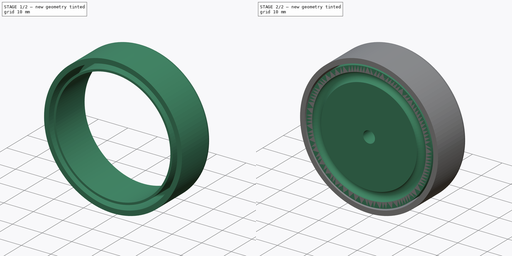
[diagram: build sequence overview — one tinted view per stage of 2, left to right]
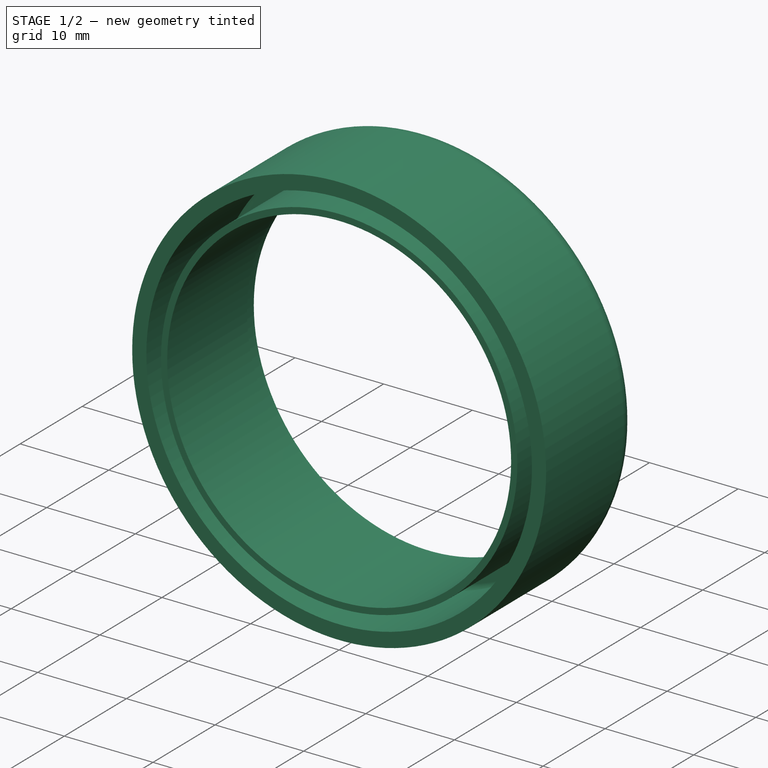
[diagram: stage 1 of 2 — iso view after this stage's code; geometry added in this stage tinted green]
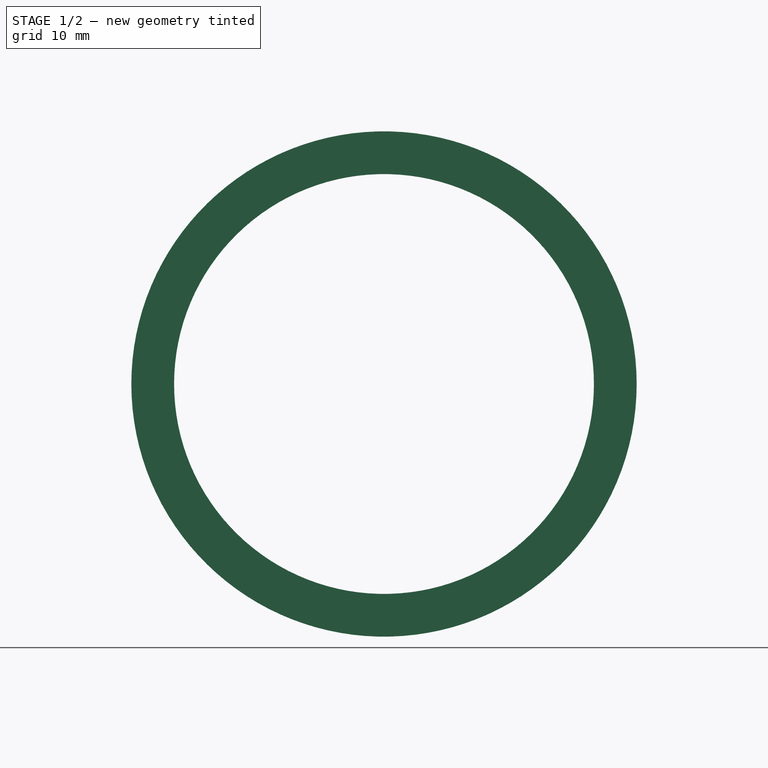
[diagram: stage 1 of 2 — front view after this stage's code; geometry added in this stage tinted green]
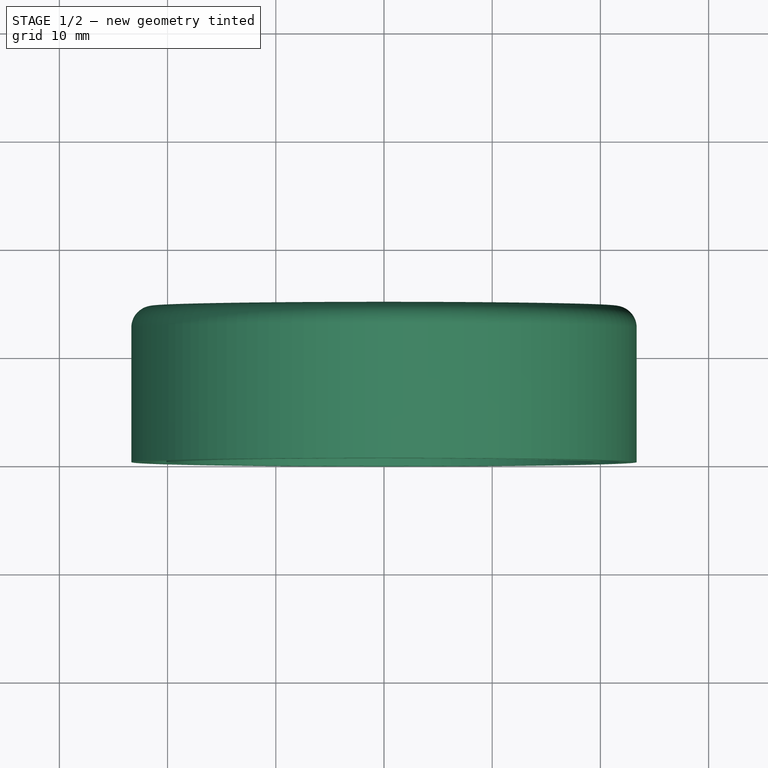
[diagram: stage 1 of 2 — top view after this stage's code; geometry added in this stage tinted green]
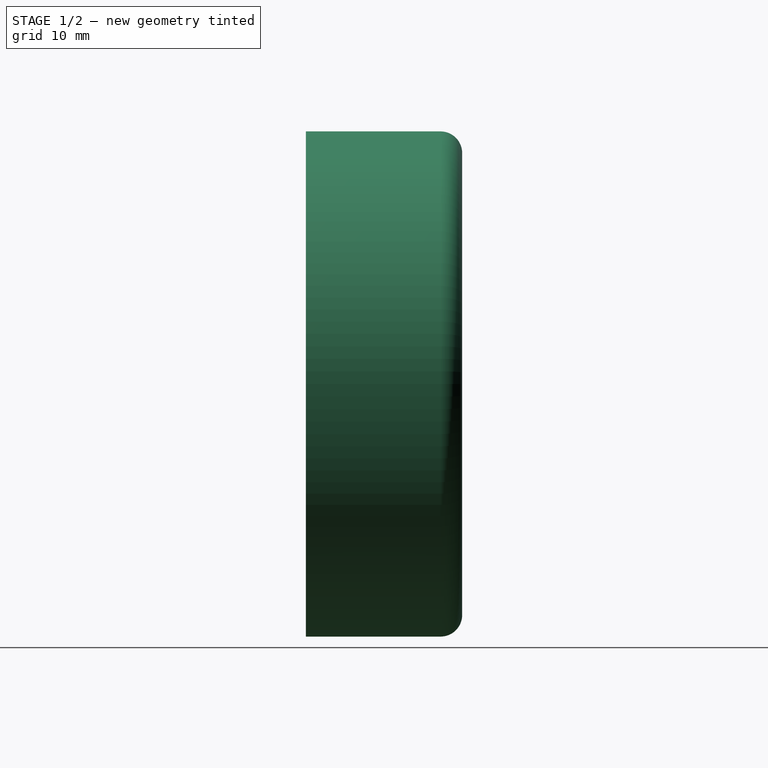
[diagram: stage 1 of 2 — right view after this stage's code; geometry added in this stage tinted green]
FCSTD DOCUMENT  (FreeCAD 0.16R6348 (Git))
Label: Stethoscoop
License: All rights reserved
LicenseURL: http://en.wikipedia.org/wiki/All_rights_reserved
objects: Sketcher::SketchObject×3, PartDesign::Revolution×2, PartDesign::Pad×1
note: 9 computed .brp shape members not serialized (recipe doc carries the construction recipe); baked Part::Feature solids carry a one-line shape summary decoded from their .brp

FEATURE [Sketcher::SketchObject] Sketch001
  sketch-geometry (8):
    g0: LineSegment StartX=21.75 StartY=0 StartZ=0 EndX=21.75 EndY=10.85 EndZ=0
    g1: LineSegment StartX=21.75 StartY=12.85 StartZ=0 EndX=19.75 EndY=12.85 EndZ=0
    g2: LineSegment StartX=19.75 StartY=12.85 StartZ=0 EndX=19.75 EndY=14.45 EndZ=0
    g3: LineSegment StartX=19.75 StartY=14.45 StartZ=0 EndX=21.35 EndY=14.45 EndZ=0
    g4: LineSegment StartX=23.35 StartY=12.45 StartZ=0 EndX=23.35 EndY=0 EndZ=0
    g5: LineSegment StartX=23.35 StartY=0 StartZ=0 EndX=21.75 EndY=0 EndZ=0
    g6: ArcOfCircle CenterX=21.35 CenterY=12.45 CenterZ=0 NormalX=0 NormalY=0 NormalZ=1 Radius=2 StartAngle=0 EndAngle=1.5708
    g7: ArcOfCircle CenterX=21.75 CenterY=11.85 CenterZ=0 NormalX=0 NormalY=0 NormalZ=1 Radius=1 StartAngle=4.71239 EndAngle=7.85398
  constraints (23):
    c: PointOnObject(g0,g-1)
    c: Vertical(g0)
    c: Horizontal(g1)
    c: Vertical(g2)
    c: Coincident(g2,g3)
    c: Horizontal(g3)
    c: PointOnObject(g4,g-1)
    c: Vertical(g4)
    c: Coincident(g4,g5)
    c: Coincident(g5,g0)
    c: DistanceX(g5) = -1.6
    c: DistanceX(g-1,g0) = 21.75
    c: Tangent(g3,g6) = 1.5708
    c: Tangent(g4,g6) = 1.5708
    c: Radius(g6) = 2
    c: Tangent(g1,g7) = -1.5708
    c: Radius(g7) = 1
    c: DistanceX(g0,g2) = -2
    c: DistanceY(g2,g1) = -1.6
    c: DistanceY(g1,g0) = -12.85
    c: Coincident(g2,g1)
    c: Angle(g7) = 3.14159
    c: Coincident(g0,g7)
FEATURE [PartDesign::Revolution] Revolution001  label="Outer"
  Angle = 360
  Axis = (0,1,0)
  Base = (0,0,0)
  ReferenceAxis = -> Sketch001 [V_Axis]
  Reversed = true
  Sketch = -> Sketch001
FEATURE [Sketcher::SketchObject] Sketch002
  ExternalGeometry = -> [Revolution001]
  Placement = pos=(0,12.85,0) rot=(1,0,0;1.5708rad)
  Support = -> Revolution001 [Face5]
  sketch-geometry (5):
    g0: Circle CenterX=0 CenterY=0 CenterZ=0 NormalX=0 NormalY=0 NormalZ=1 Radius=19.4
    g1: Circle CenterX=0 CenterY=0 CenterZ=0 NormalX=0 NormalY=0 NormalZ=1 Radius=20.1
    g2: LineSegment [constr] StartX=0 StartY=20.1 StartZ=0 EndX=0 EndY=19.75 EndZ=0
    g3: LineSegment [constr] StartX=0 StartY=19.75 StartZ=0 EndX=0 EndY=19.4 EndZ=0
    g4: LineSegment [constr] StartX=0 StartY=19.4 StartZ=0 EndX=0 EndY=0 EndZ=0
  constraints (13):
    c: Coincident(g-1,g0)
    c: Coincident(g1,g-1)
    c: Vertical(g2)
    c: Coincident(g2,g3)
    c: PointOnObject(g3,g0)
    c: Vertical(g3)
    c: Coincident(g3,g4)
    c: Coincident(g4,g-1)
    c: Vertical(g4)
    c: PointOnObject(g2,g1)
    c: Equal(g2,g3)
    c: PointOnObject(g2,g-3)
    c: DistanceY(g2,g3) = -0.7
FEATURE [PartDesign::Pad] Pad
  Length = 10
  Length2 = 100
  Sketch = -> Sketch002
  Type = 3
  UpToFace = -> Revolution001 [Face2]
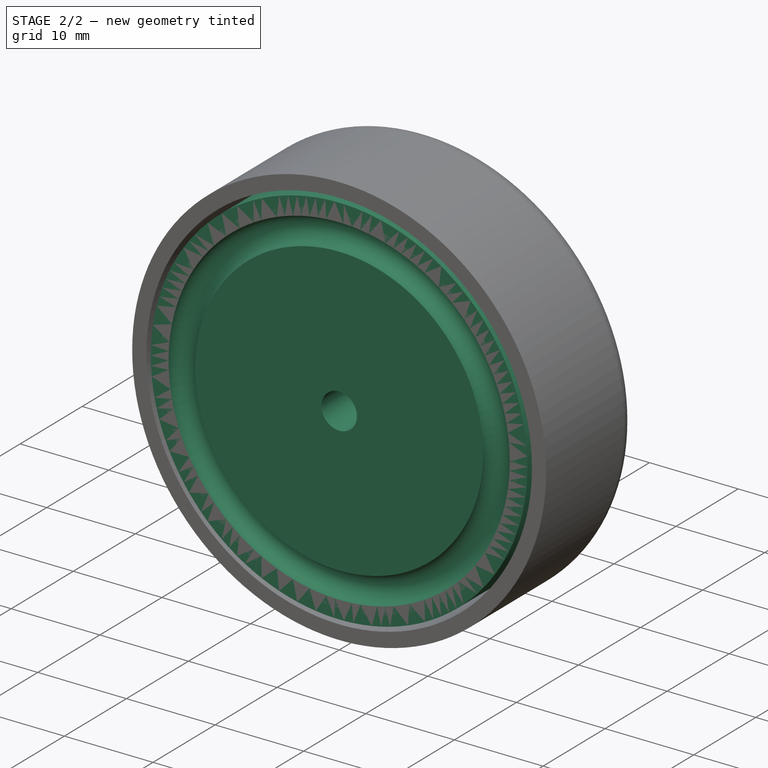
[diagram: stage 2 of 2 — iso view after this stage's code; geometry added in this stage tinted green]
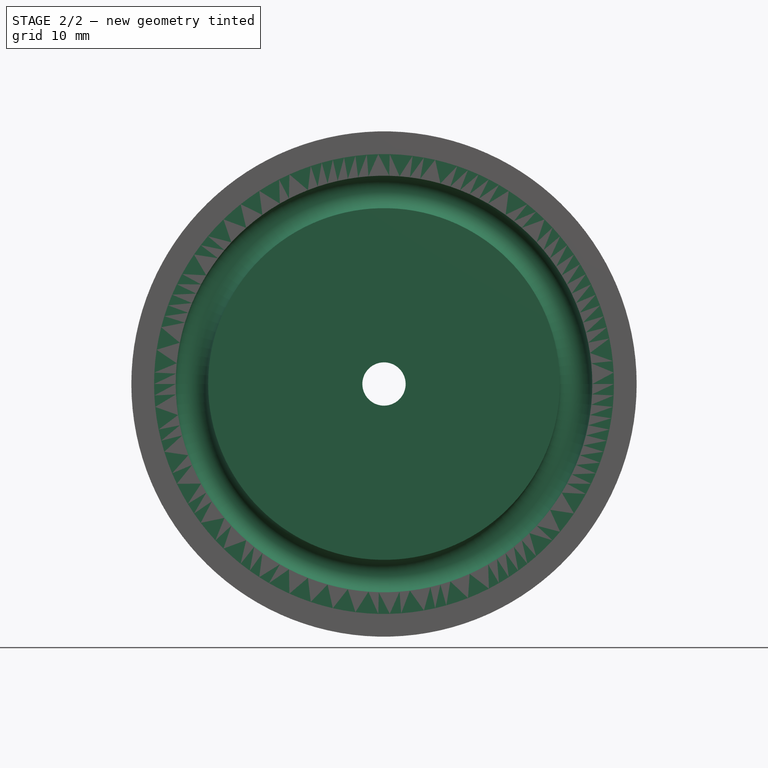
[diagram: stage 2 of 2 — front view after this stage's code; geometry added in this stage tinted green]
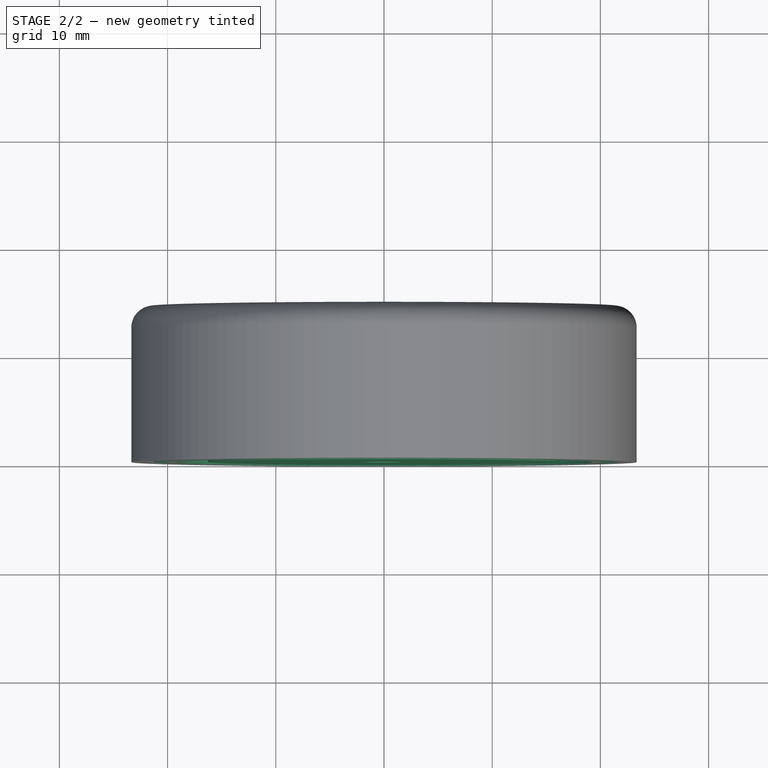
[diagram: stage 2 of 2 — top view after this stage's code; geometry added in this stage tinted green]
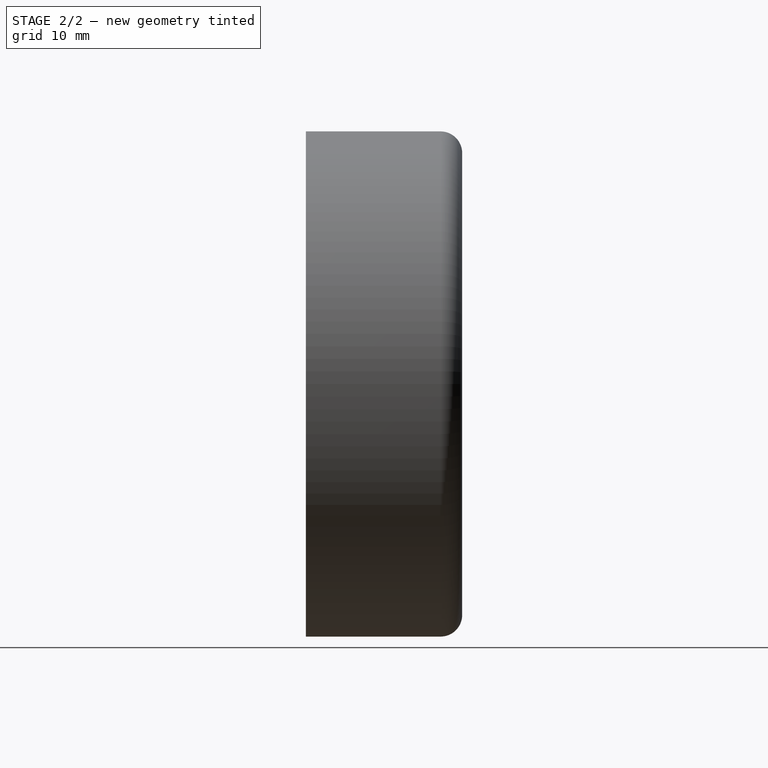
[diagram: stage 2 of 2 — right view after this stage's code; geometry added in this stage tinted green]
FEATURE [Sketcher::SketchObject] Sketch
  sketch-geometry (10):
    g0: LineSegment StartX=21.25 StartY=0 StartZ=0 EndX=19.25 EndY=0 EndZ=0
    g1: ArcOfCircle CenterX=17.9 CenterY=10 CenterZ=0 NormalX=0 NormalY=0 NormalZ=1 Radius=0.85 StartAngle=0 EndAngle=3.14159
    g2: LineSegment StartX=18.75 StartY=10 StartZ=0 EndX=20.25 EndY=10 EndZ=0
    g3: LineSegment StartX=21.25 StartY=9 StartZ=0 EndX=21.25 EndY=0 EndZ=0
    g4: ArcOfCircle CenterX=20.25 CenterY=9 CenterZ=0 NormalX=0 NormalY=0 NormalZ=1 Radius=1 StartAngle=0 EndAngle=1.5708
    g5: LineSegment StartX=17.05 StartY=10 StartZ=0 EndX=3.7968 EndY=7.926 EndZ=0
    g6: LineSegment StartX=2 StartY=0 StartZ=0 EndX=16.25 EndY=0 EndZ=0
    g7: ArcOfCircle CenterX=17.75 CenterY=0 CenterZ=0 NormalX=0 NormalY=0 NormalZ=1 Radius=1.5 StartAngle=0 EndAngle=3.14159
    g8: LineSegment StartX=2 StartY=0 StartZ=0 EndX=2 EndY=5.82615 EndZ=0
    g9: ArcOfCircle CenterX=4.12541 CenterY=5.82615 CenterZ=0 NormalX=0 NormalY=0 NormalZ=1 Radius=2.12541 StartAngle=1.72603 EndAngle=3.14159
  constraints (29):
    c: Horizontal(g0)
    c: Perpendicular(g1,g2) = 4.71239
    c: Coincident(g3,g0)
    c: Vertical(g3)
    c: Radius(g1) = 0.85
    c: DistanceX(g0) = -2
    c: PointOnObject(g0,g-1)
    c: DistanceX(g-1,g0) = 21.25
    c: Horizontal(g2)
    c: Tangent(g2,g4) = 1.5708
    c: Tangent(g3,g4) = 1.5708
    c: Radius(g4) = 1
    c: DistanceY(g2,g0) = -10
    c: DistanceX(g3,g1) = -2.5
    c: Coincident(g1,g5)
    c: PointOnObject(g6,g-1)
    c: Coincident(g7,g6)
    c: Coincident(g7,g0)
    c: Horizontal(g6)
    c: Angle(g1) = 3.14159
    c: DistanceX(g-1,g6) = 2
    c: Angle(g7) = 3.14159
    c: Coincident(g6,g8)
    c: Vertical(g8)
    c: Coincident(g9,g8)
    c: Coincident(g9,g5)
    c: Tangent(g8,g9) = 1.5708
    c: Tangent(g5,g9) = -1.5708
    c: Radius(g7) = 1.5
FEATURE [PartDesign::Revolution] Revolution  label="Inner"
  Angle = 360
  Axis = (0,1,0)
  Base = (0,0,0)
  ReferenceAxis = -> Sketch [V_Axis]
  Reversed = true
  Sketch = -> Sketch
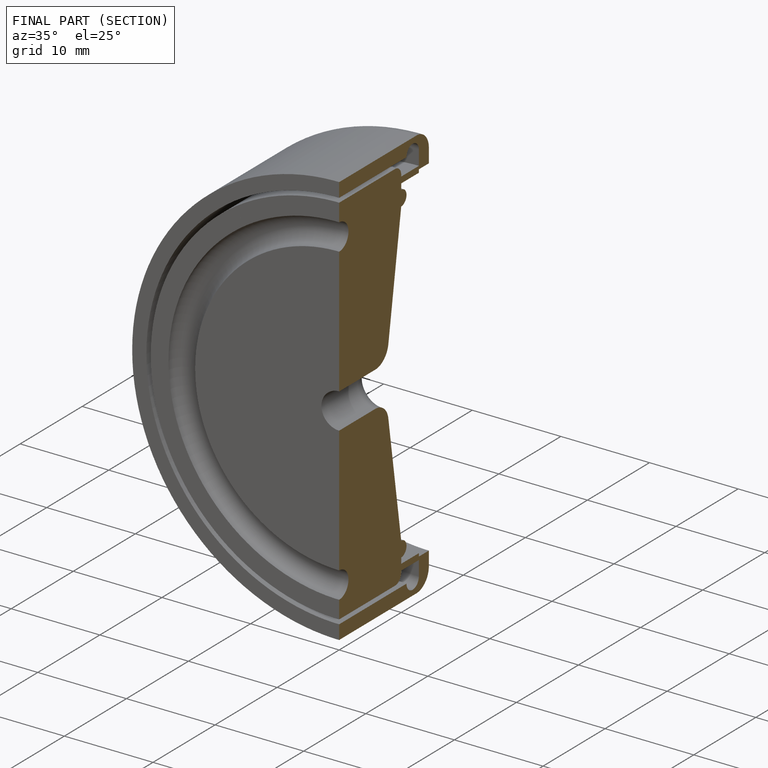
[diagram: finished part — half-section view (interior)]
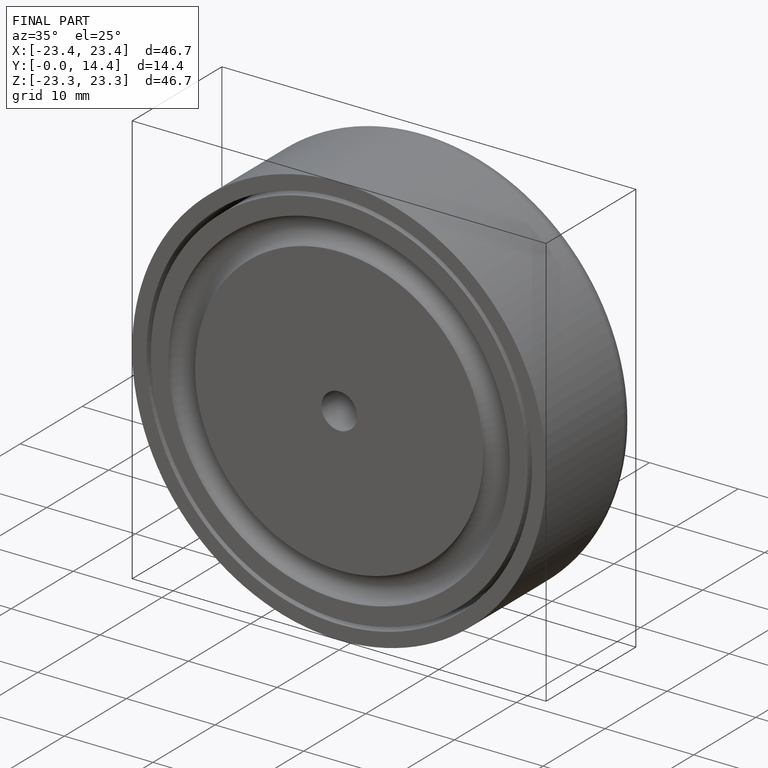
[diagram: finished part — iso view with bounding-box wireframe]
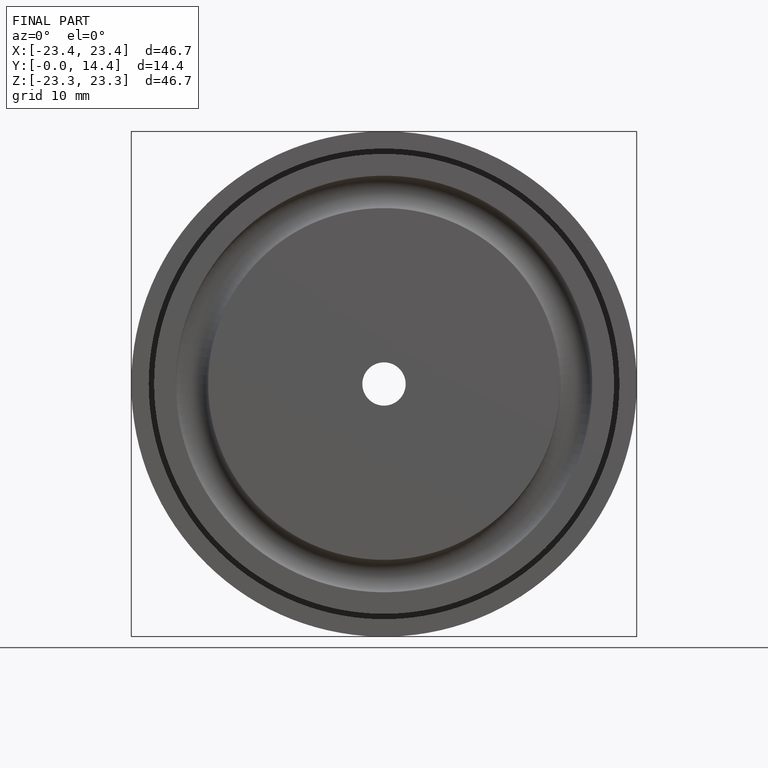
[diagram: finished part — front view with bounding-box wireframe]
